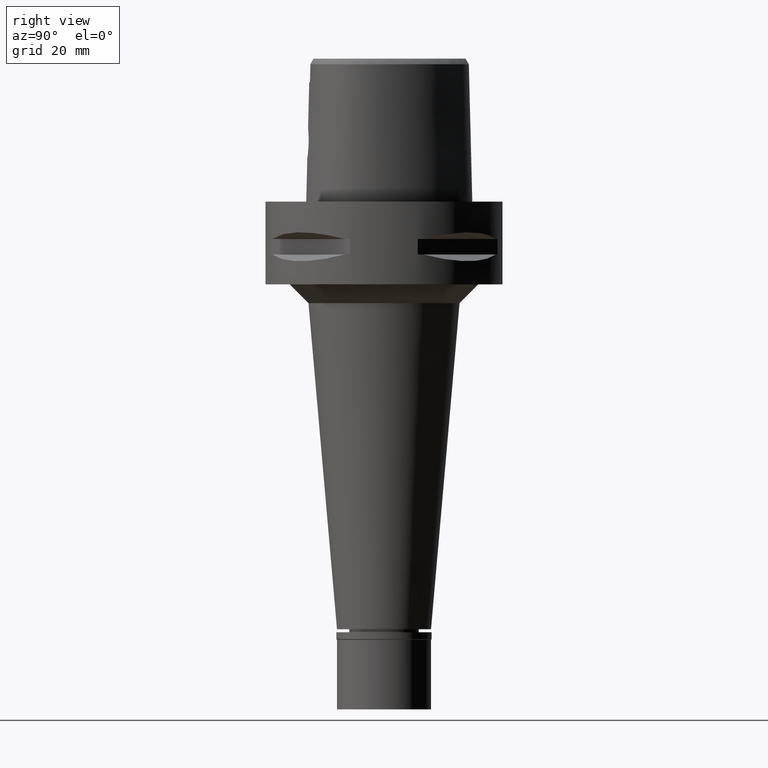
[diagram: clean part render]
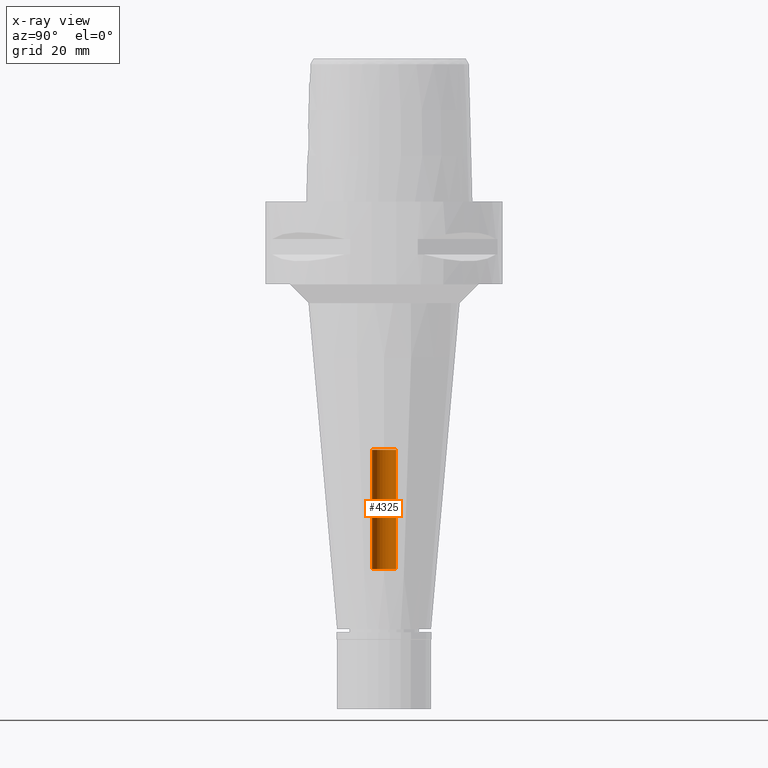
[diagram: x-ray — body ghosted, one internal face saturated and labeled with its STEP entity id]
A machine part, right view, then the same camera in x-ray: the body is ghosted and one INTERNAL B-rep face — a face not visible from any outside direction — is saturated and labeled: STEP entity #4325.
In plain terms, the highlighted cylindrical surface (edge-blend (fillet) strip) has radius 3.2 mm, axis along (0, 0, -1).
Its self-contained STEP definition (entity closure, byte-faithful):
#31 = CYLINDRICAL_SURFACE ( 'NONE', #3800, 3.200000000000000178 ) ;
#280 = ORIENTED_EDGE ( 'NONE', *, *, #1865, .T. ) ;
#416 = CARTESIAN_POINT ( 'NONE',  ( 0.0000000000000000000, -3.200000000000000178, -66.00000000000000000 ) ) ;
#528 = DIRECTION ( 'NONE',  ( 0.0000000000000000000, 0.0000000000000000000, -1.000000000000000000 ) ) ;
#829 = LINE ( 'NONE', #2026, #4985 ) ;
#1074 = VERTEX_POINT ( 'NONE', #2185 ) ;
#1307 = VERTEX_POINT ( 'NONE', #416 ) ;
#1595 = CARTESIAN_POINT ( 'NONE',  ( 0.0000000000000000000, 0.0000000000000000000, 6.440000000000000391 ) ) ;
#1654 = VERTEX_POINT ( 'NONE', #2176 ) ;
#1743 = ORIENTED_EDGE ( 'NONE', *, *, #3561, .F. ) ;
#1865 = EDGE_CURVE ( 'NONE', #1654, #4468, #1946, .T. ) ;
#1890 = CARTESIAN_POINT ( 'NONE',  ( 0.0000000000000000000, 3.200000000000000178, -97.79999999999999716 ) ) ;
#1911 = EDGE_LOOP ( 'NONE', ( #4329, #1743, #280, #3462 ) ) ;
#1946 = CIRCLE ( 'NONE', #4897, 3.200000000000000178 ) ;
#2026 = CARTESIAN_POINT ( 'NONE',  ( 0.0000000000000000000, -3.200000000000000178, -97.79999999999999716 ) ) ;
#2068 = DIRECTION ( 'NONE',  ( 0.0000000000000000000, 0.0000000000000000000, 1.000000000000000000 ) ) ;
#2176 = CARTESIAN_POINT ( 'NONE',  ( 0.0000000000000000000, -3.200000000000000178, -97.79999999999999716 ) ) ;
#2185 = CARTESIAN_POINT ( 'NONE',  ( 0.0000000000000000000, 3.200000000000000178, -66.00000000000000000 ) ) ;
#2331 = EDGE_CURVE ( 'NONE', #1074, #1307, #4569, .T. ) ;
#2378 = DIRECTION ( 'NONE',  ( 0.0000000000000000000, 1.000000000000000000, 0.0000000000000000000 ) ) ;
#2619 = VECTOR ( 'NONE', #3362, 1000.000000000000000 ) ;
#3158 = DIRECTION ( 'NONE',  ( 0.0000000000000000000, 0.0000000000000000000, -1.000000000000000000 ) ) ;
#3285 = DIRECTION ( 'NONE',  ( 0.0000000000000000000, -1.000000000000000000, 0.0000000000000000000 ) ) ;
#3362 = DIRECTION ( 'NONE',  ( 0.0000000000000000000, 0.0000000000000000000, 1.000000000000000000 ) ) ;
#3462 = ORIENTED_EDGE ( 'NONE', *, *, #3809, .T. ) ;
#3538 = FACE_OUTER_BOUND ( 'NONE', #1911, .T. ) ;
#3561 = EDGE_CURVE ( 'NONE', #1654, #1307, #829, .T. ) ;
#3589 = DIRECTION ( 'NONE',  ( 0.0000000000000000000, 0.0000000000000000000, 1.000000000000000000 ) ) ;
#3599 = CARTESIAN_POINT ( 'NONE',  ( 0.0000000000000000000, 0.0000000000000000000, -97.79999999999999716 ) ) ;
#3736 = LINE ( 'NONE', #1890, #2619 ) ;
#3800 = AXIS2_PLACEMENT_3D ( 'NONE', #1595, #3158, #3285 ) ;
#3809 = EDGE_CURVE ( 'NONE', #4468, #1074, #3736, .T. ) ;
#4325 = ADVANCED_FACE ( 'NONE', ( #3538 ), #31, .F. ) ;
#4329 = ORIENTED_EDGE ( 'NONE', *, *, #2331, .T. ) ;
#4468 = VERTEX_POINT ( 'NONE', #4793 ) ;
#4569 = CIRCLE ( 'NONE', #4811, 3.200000000000000178 ) ;
#4723 = DIRECTION ( 'NONE',  ( 0.0000000000000000000, -1.000000000000000000, 0.0000000000000000000 ) ) ;
#4793 = CARTESIAN_POINT ( 'NONE',  ( 0.0000000000000000000, 3.200000000000000178, -97.79999999999999716 ) ) ;
#4810 = CARTESIAN_POINT ( 'NONE',  ( 0.0000000000000000000, 0.0000000000000000000, -66.00000000000000000 ) ) ;
#4811 = AXIS2_PLACEMENT_3D ( 'NONE', #4810, #2068, #2378 ) ;
#4897 = AXIS2_PLACEMENT_3D ( 'NONE', #3599, #528, #4723 ) ;
#4985 = VECTOR ( 'NONE', #3589, 1000.000000000000000 ) ;